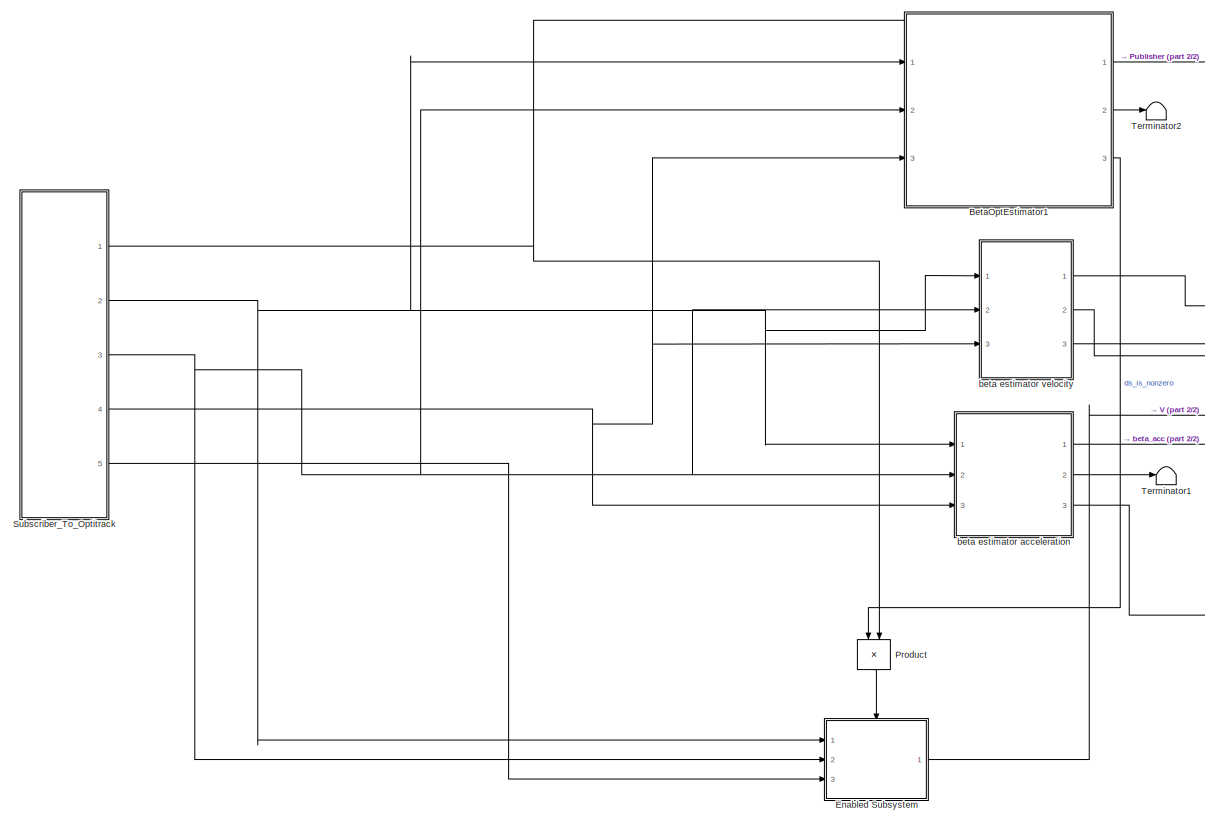
[diagram: root canvas - part 1/2, center side, full height]
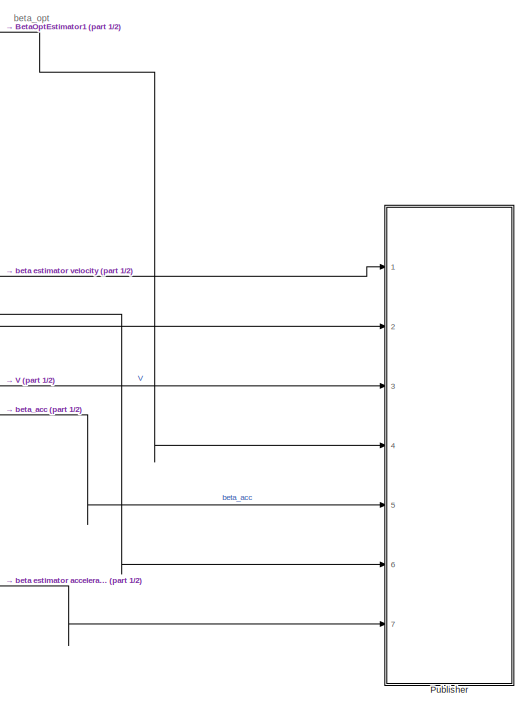
[diagram: root canvas - part 2/2, right side, full height]
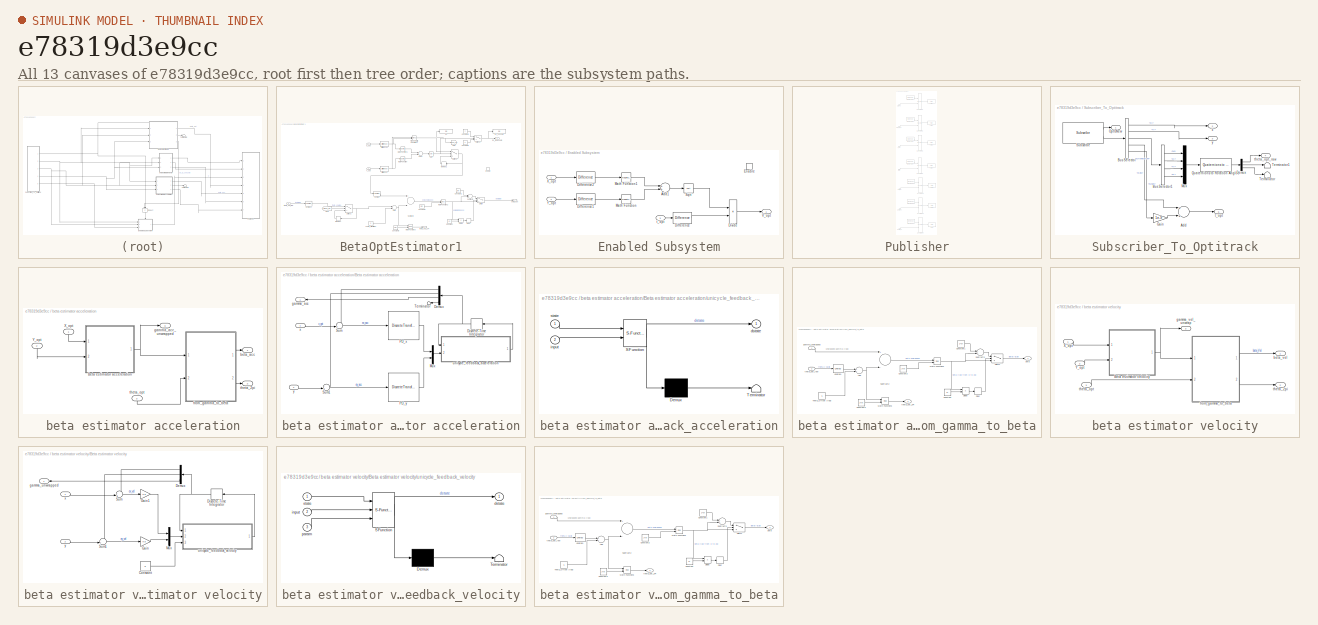
[diagram: thumbnail index - all 13 canvases of the model, root first then tree order]
MODEL slx_e78319d3e9cc
KIND model
CONFIG AbsTol = auto
CONFIG EnableMultiTasking = off
CONFIG FixedStep = 1e-3
CONFIG InitFcn = state_estimator_opt_driftingcar_multibeta_callback
CONFIG MaxStep = auto
CONFIG MinStep = auto
CONFIG RelTol = 1e-3
CONFIG SampleTimeConstraint = Unconstrained
CONFIG Solver = FixedStepAuto
CONFIG SolverName = FixedStepAuto
CONFIG StartTime = 0.0
CONFIG StopTime = inf
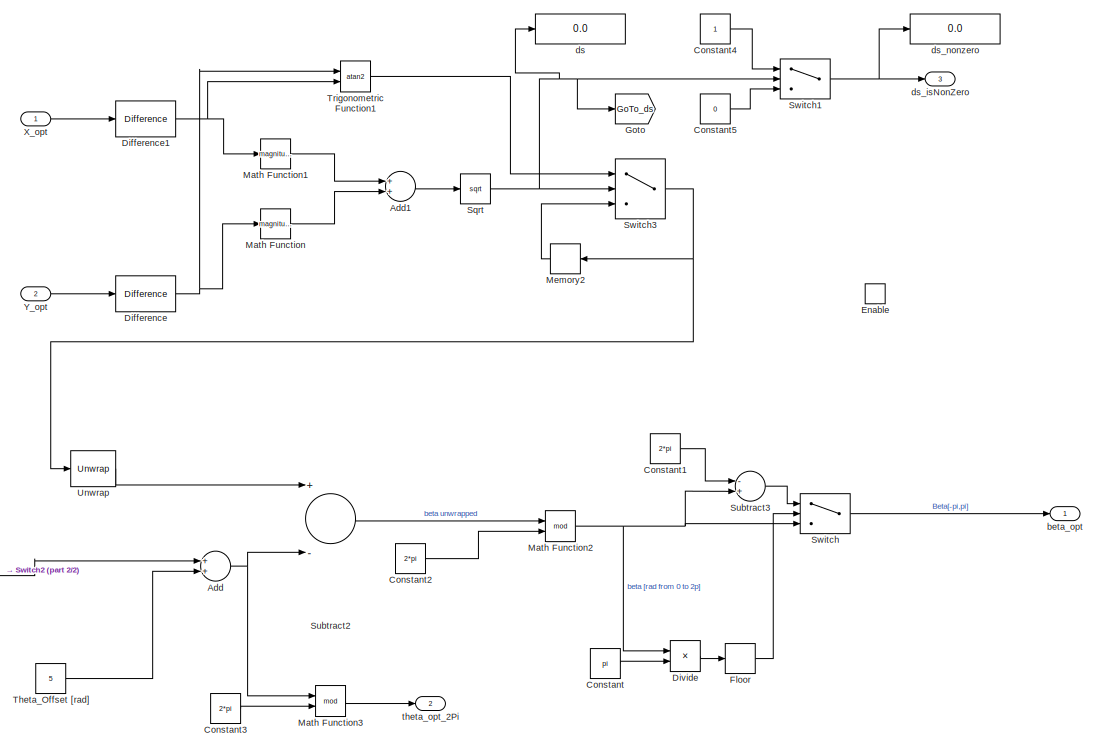
[diagram: BetaOptEstimator1 - part 1/2, right side, full height]
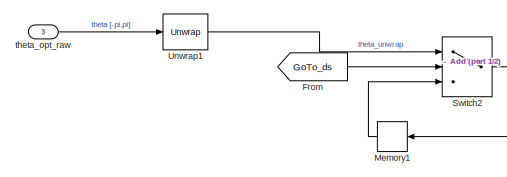
[diagram: BetaOptEstimator1 - part 2/2, bottom left region]
BLOCK [SubSystem] BetaOptEstimator1
  Ports = [3, 3, 1]
  RequestExecContextInheritance = off
  Variant = off
BLOCK [Sum] BetaOptEstimator1/Add
  InputSameDT = off
  OutDataTypeStr = Inherit: Inherit via internal rule
  Ports = [2, 1]
  SaturateOnIntegerOverflow = off
BLOCK [Sum] BetaOptEstimator1/Add1
  InputSameDT = off
  OutDataTypeStr = Inherit: Inherit via internal rule
  Ports = [2, 1]
  SaturateOnIntegerOverflow = off
BLOCK [Constant] BetaOptEstimator1/Constant
  Value = pi
BLOCK [Constant] BetaOptEstimator1/Constant1
  Value = 2*pi
BLOCK [Constant] BetaOptEstimator1/Constant2
  Value = 2*pi
BLOCK [Constant] BetaOptEstimator1/Constant3
  Value = 2*pi
BLOCK [Constant] BetaOptEstimator1/Constant4
BLOCK [Constant] BetaOptEstimator1/Constant5
  Value = 0
BLOCK [Reference] BetaOptEstimator1/Difference  REF=simulink/Discrete/Difference
  Ports = [1, 1]
  SourceBlock = simulink/Discrete/Difference
  SourceProductBaseCode = SL
  SourceProductName = Simulink
  SourceType = Difference
BLOCK [Reference] BetaOptEstimator1/Difference1  REF=simulink/Discrete/Difference
  Ports = [1, 1]
  SourceBlock = simulink/Discrete/Difference
  SourceProductBaseCode = SL
  SourceProductName = Simulink
  SourceType = Difference
BLOCK [Product] BetaOptEstimator1/Divide
  InputSameDT = off
  Inputs = */
  OutDataTypeStr = Inherit: Inherit via internal rule
  Ports = [2, 1]
  RndMeth = Floor
  SaturateOnIntegerOverflow = off
BLOCK [EnablePort] BetaOptEstimator1/Enable
  Ports = []
BLOCK [Rounding] BetaOptEstimator1/Floor
BLOCK [From] BetaOptEstimator1/From
  GotoTag = GoTo_ds
  TagVisibility = global
BLOCK [Goto] BetaOptEstimator1/Goto
  GotoTag = GoTo_ds
  TagVisibility = global
BLOCK [Math] BetaOptEstimator1/Math Function
  Operator = magnitude^2
  Ports = [1, 1]
BLOCK [Math] BetaOptEstimator1/Math Function1
  Operator = magnitude^2
  Ports = [1, 1]
BLOCK [Math] BetaOptEstimator1/Math Function2
  Operator = mod
  Ports = [2, 1]
BLOCK [Math] BetaOptEstimator1/Math Function3
  Operator = mod
  Ports = [2, 1]
BLOCK [Memory] BetaOptEstimator1/Memory1
BLOCK [Memory] BetaOptEstimator1/Memory2
BLOCK [Sqrt] BetaOptEstimator1/Sqrt
BLOCK [Sum] BetaOptEstimator1/Subtract2
  InputSameDT = off
  Inputs = +-
  OutDataTypeStr = Inherit: Inherit via internal rule
  Ports = [2, 1]
  SaturateOnIntegerOverflow = off
BLOCK [Sum] BetaOptEstimator1/Subtract3
  InputSameDT = off
  Inputs = -+
  OutDataTypeStr = Inherit: Inherit via internal rule
  Ports = [2, 1]
  SaturateOnIntegerOverflow = off
BLOCK [Switch] BetaOptEstimator1/Switch
  InputSameDT = off
  SaturateOnIntegerOverflow = off
  Threshold = 1
BLOCK [Switch] BetaOptEstimator1/Switch1
  Criteria = u2 > Threshold
  InputSameDT = off
  SaturateOnIntegerOverflow = off
  Threshold = ds_nonzero_threshold
BLOCK [Switch] BetaOptEstimator1/Switch2
  Criteria = u2 > Threshold
  InputSameDT = off
  SaturateOnIntegerOverflow = off
  Threshold = ds_nonzero_threshold
BLOCK [Switch] BetaOptEstimator1/Switch3
  Criteria = u2 > Threshold
  InputSameDT = off
  SaturateOnIntegerOverflow = off
  Threshold = ds_nonzero_threshold
BLOCK [Constant] BetaOptEstimator1/Theta_Offset [rad]
  Value = 5
BLOCK [Trigonometry] BetaOptEstimator1/Trigonometric Function1
  Operator = atan2
  Ports = [2, 1]
BLOCK [Reference] BetaOptEstimator1/Unwrap  REF=dspsigops/Unwrap
  Ports = [1, 1]
  SourceBlock = dspsigops/Unwrap
  SourceProductBaseCode = DS
  SourceProductName = DSP System Toolbox
  SourceType = Unwrap
  UserDataPersistent = on
BLOCK [Reference] BetaOptEstimator1/Unwrap1  REF=dspsigops/Unwrap
  Ports = [1, 1]
  SourceBlock = dspsigops/Unwrap
  SourceProductBaseCode = DS
  SourceProductName = DSP System Toolbox
  SourceType = Unwrap
  UserDataPersistent = on
BLOCK [Inport] BetaOptEstimator1/X_opt
  IconDisplay = Port number
BLOCK [Inport] BetaOptEstimator1/Y_opt
  IconDisplay = Port number
  Port = 2
BLOCK [Outport] BetaOptEstimator1/beta_opt
  IconDisplay = Port number
BLOCK [Display] BetaOptEstimator1/ds
  Decimation = 1
  Ports = [1]
BLOCK [Outport] BetaOptEstimator1/ds_isNonZero
  IconDisplay = Port number
  Port = 3
BLOCK [Display] BetaOptEstimator1/ds_nonzero
  Decimation = 1
  Ports = [1]
BLOCK [Outport] BetaOptEstimator1/theta_opt_2Pi
  IconDisplay = Port number
  Port = 2
BLOCK [Inport] BetaOptEstimator1/theta_opt_raw
  IconDisplay = Port number
  Port = 3
BLOCK [SubSystem] Enabled Subsystem
  Ports = [3, 1, 1]
  RequestExecContextInheritance = off
  TreatAsAtomicUnit = on
  Variant = off
BLOCK [Sum] Enabled Subsystem/Add1
  InputSameDT = off
  OutDataTypeStr = Inherit: Inherit via internal rule
  Ports = [2, 1]
  SaturateOnIntegerOverflow = off
BLOCK [Reference] Enabled Subsystem/Difference  REF=simulink/Discrete/Difference
  Ports = [1, 1]
  SourceBlock = simulink/Discrete/Difference
  SourceProductBaseCode = SL
  SourceProductName = Simulink
  SourceType = Difference
BLOCK [Reference] Enabled Subsystem/Difference1  REF=simulink/Discrete/Difference
  Ports = [1, 1]
  SourceBlock = simulink/Discrete/Difference
  SourceProductBaseCode = SL
  SourceProductName = Simulink
  SourceType = Difference
BLOCK [Reference] Enabled Subsystem/Difference2  REF=simulink/Discrete/Difference
  Ports = [1, 1]
  SourceBlock = simulink/Discrete/Difference
  SourceProductBaseCode = SL
  SourceProductName = Simulink
  SourceType = Difference
BLOCK [Product] Enabled Subsystem/Divide
  InputSameDT = off
  Inputs = */
  OutDataTypeStr = Inherit: Inherit via internal rule
  Ports = [2, 1]
  RndMeth = Floor
  SaturateOnIntegerOverflow = off
BLOCK [EnablePort] Enabled Subsystem/Enable
  Ports = []
BLOCK [Math] Enabled Subsystem/Math Function
  Operator = magnitude^2
  Ports = [1, 1]
BLOCK [Math] Enabled Subsystem/Math Function1
  Operator = magnitude^2
  Ports = [1, 1]
BLOCK [Sqrt] Enabled Subsystem/Sqrt
BLOCK [Outport] Enabled Subsystem/V_opt
  IconDisplay = Port number
BLOCK [Inport] Enabled Subsystem/X_opt
  IconDisplay = Port number
BLOCK [Inport] Enabled Subsystem/Y_opt
  IconDisplay = Port number
  Port = 2
BLOCK [Inport] Enabled Subsystem/t_opt
  IconDisplay = Port number
  Port = 3
BLOCK [Product] Product
  InputSameDT = off
  OutDataTypeStr = Inherit: Inherit via internal rule
  Ports = [2, 1]
  RndMeth = Floor
  SaturateOnIntegerOverflow = off
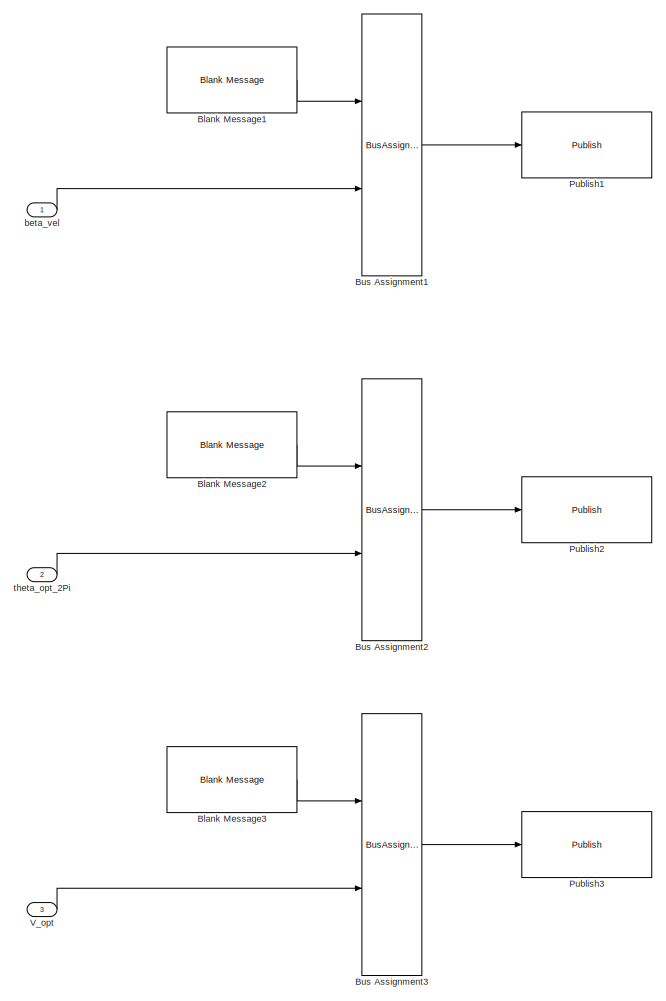
[diagram: Publisher - part 1/2, full width, top band]
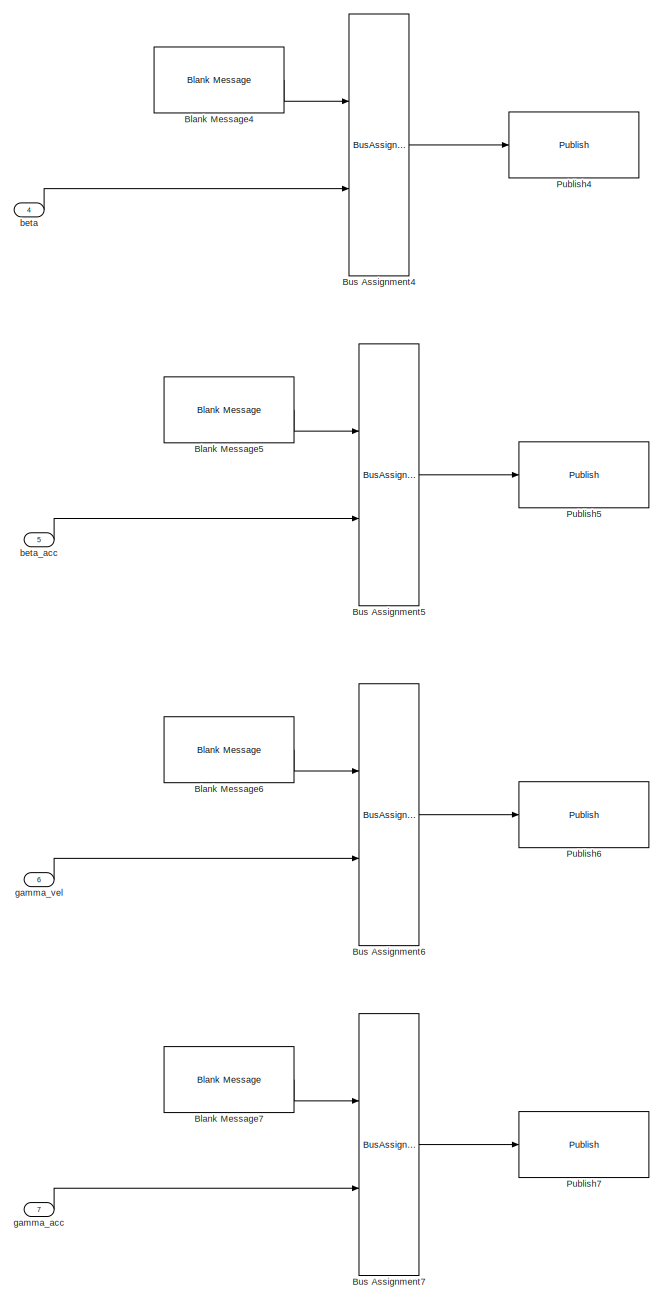
[diagram: Publisher - part 2/2, full width, bottom band]
BLOCK [SubSystem] Publisher
  Ports = [7]
  RequestExecContextInheritance = off
  Variant = off
BLOCK [Reference] Publisher/Blank Message1  REF=robotlib/Blank Message
  Ports = [0, 1]
  SourceBlock = robotlib/Blank Message
  SourceLibraryInfo = This block requires Robotics System Toolbox
  SourceProductBaseCode = RO
  SourceProductName = Robotics System Toolbox
  SourceType = ROS Blank Message
BLOCK [Reference] Publisher/Blank Message2  REF=robotlib/Blank Message
  Ports = [0, 1]
  SourceBlock = robotlib/Blank Message
  SourceLibraryInfo = This block requires Robotics System Toolbox
  SourceProductBaseCode = RO
  SourceProductName = Robotics System Toolbox
  SourceType = ROS Blank Message
BLOCK [Reference] Publisher/Blank Message3  REF=robotlib/Blank Message
  Ports = [0, 1]
  SourceBlock = robotlib/Blank Message
  SourceLibraryInfo = This block requires Robotics System Toolbox
  SourceProductBaseCode = RO
  SourceProductName = Robotics System Toolbox
  SourceType = ROS Blank Message
BLOCK [Reference] Publisher/Blank Message4  REF=robotlib/Blank Message
  Ports = [0, 1]
  SourceBlock = robotlib/Blank Message
  SourceLibraryInfo = This block requires Robotics System Toolbox
  SourceProductBaseCode = RO
  SourceProductName = Robotics System Toolbox
  SourceType = ROS Blank Message
BLOCK [Reference] Publisher/Blank Message5  REF=robotlib/Blank Message
  Ports = [0, 1]
  SourceBlock = robotlib/Blank Message
  SourceLibraryInfo = This block requires Robotics System Toolbox
  SourceProductBaseCode = RO
  SourceProductName = Robotics System Toolbox
  SourceType = ROS Blank Message
BLOCK [Reference] Publisher/Blank Message6  REF=robotlib/Blank Message
  Ports = [0, 1]
  SourceBlock = robotlib/Blank Message
  SourceLibraryInfo = This block requires Robotics System Toolbox
  SourceProductBaseCode = RO
  SourceProductName = Robotics System Toolbox
  SourceType = ROS Blank Message
BLOCK [Reference] Publisher/Blank Message7  REF=robotlib/Blank Message
  Ports = [0, 1]
  SourceBlock = robotlib/Blank Message
  SourceLibraryInfo = This block requires Robotics System Toolbox
  SourceProductBaseCode = RO
  SourceProductName = Robotics System Toolbox
  SourceType = ROS Blank Message
BLOCK [BusAssignment] Publisher/Bus Assignment1
  AssignedSignals = Data
  Ports = [2, 1]
BLOCK [BusAssignment] Publisher/Bus Assignment2
  AssignedSignals = Data
  Ports = [2, 1]
BLOCK [BusAssignment] Publisher/Bus Assignment3
  AssignedSignals = Data
  Ports = [2, 1]
BLOCK [BusAssignment] Publisher/Bus Assignment4
  AssignedSignals = Data
  Ports = [2, 1]
BLOCK [BusAssignment] Publisher/Bus Assignment5
  AssignedSignals = Data
  Ports = [2, 1]
BLOCK [BusAssignment] Publisher/Bus Assignment6
  AssignedSignals = Data
  Ports = [2, 1]
BLOCK [BusAssignment] Publisher/Bus Assignment7
  AssignedSignals = Data
  Ports = [2, 1]
BLOCK [Reference] Publisher/Publish1  REF=robotlib/Publish
  Ports = [1]
  SourceBlock = robotlib/Publish
  SourceLibraryInfo = This block requires Robotics System Toolbox
  SourceProductBaseCode = RO
  SourceProductName = Robotics System Toolbox
  SourceType = ROS Publish
BLOCK [Reference] Publisher/Publish2  REF=robotlib/Publish
  Ports = [1]
  SourceBlock = robotlib/Publish
  SourceLibraryInfo = This block requires Robotics System Toolbox
  SourceProductBaseCode = RO
  SourceProductName = Robotics System Toolbox
  SourceType = ROS Publish
BLOCK [Reference] Publisher/Publish3  REF=robotlib/Publish
  Ports = [1]
  SourceBlock = robotlib/Publish
  SourceLibraryInfo = This block requires Robotics System Toolbox
  SourceProductBaseCode = RO
  SourceProductName = Robotics System Toolbox
  SourceType = ROS Publish
BLOCK [Reference] Publisher/Publish4  REF=robotlib/Publish
  Ports = [1]
  SourceBlock = robotlib/Publish
  SourceLibraryInfo = This block requires Robotics System Toolbox
  SourceProductBaseCode = RO
  SourceProductName = Robotics System Toolbox
  SourceType = ROS Publish
BLOCK [Reference] Publisher/Publish5  REF=robotlib/Publish
  Ports = [1]
  SourceBlock = robotlib/Publish
  SourceLibraryInfo = This block requires Robotics System Toolbox
  SourceProductBaseCode = RO
  SourceProductName = Robotics System Toolbox
  SourceType = ROS Publish
BLOCK [Reference] Publisher/Publish6  REF=robotlib/Publish
  Ports = [1]
  SourceBlock = robotlib/Publish
  SourceLibraryInfo = This block requires Robotics System Toolbox
  SourceProductBaseCode = RO
  SourceProductName = Robotics System Toolbox
  SourceType = ROS Publish
BLOCK [Reference] Publisher/Publish7  REF=robotlib/Publish
  Ports = [1]
  SourceBlock = robotlib/Publish
  SourceLibraryInfo = This block requires Robotics System Toolbox
  SourceProductBaseCode = RO
  SourceProductName = Robotics System Toolbox
  SourceType = ROS Publish
BLOCK [Inport] Publisher/V_opt
  IconDisplay = Port number
  Port = 3
BLOCK [Inport] Publisher/beta
  IconDisplay = Port number
  Port = 4
BLOCK [Inport] Publisher/beta_acc
  IconDisplay = Port number
  Port = 5
BLOCK [Inport] Publisher/beta_vel
  IconDisplay = Port number
BLOCK [Inport] Publisher/gamma_acc
  IconDisplay = Port number
  Port = 7
BLOCK [Inport] Publisher/gamma_vel
  IconDisplay = Port number
  Port = 6
BLOCK [Inport] Publisher/theta_opt_2Pi
  IconDisplay = Port number
  Port = 2
BLOCK [SubSystem] Subscriber_To_Optitrack
  Ports = [0, 5]
  RequestExecContextInheritance = off
  Variant = off
BLOCK [Sum] Subscriber_To_Optitrack/Add
  InputSameDT = off
  OutDataTypeStr = Inherit: Inherit via internal rule
  Ports = [2, 1]
  SaturateOnIntegerOverflow = off
BLOCK [BusSelector] Subscriber_To_Optitrack/Bus Selector
  OutputAsBus = off
  OutputSignals = Pose.Position.X,Pose.Position.Y,Pose.Orientation,Header.Stamp.Sec,Header.Stamp.Nsec
  Ports = [1, 5]
BLOCK [BusSelector] Subscriber_To_Optitrack/Bus Selector1
  OutputAsBus = off
  OutputSignals = W,X,Y,Z
  Ports = [1, 4]
BLOCK [Demux] Subscriber_To_Optitrack/Demux
  DisplayOption = bar
  Outputs = 3
  Ports = [1, 3]
BLOCK [Gain] Subscriber_To_Optitrack/Gain
  Gain = 1e-9
  OutDataTypeStr = Inherit: Inherit via internal rule
  ParamDataTypeStr = Inherit: Inherit via internal rule
  SaturateOnIntegerOverflow = off
BLOCK [Mux] Subscriber_To_Optitrack/Mux
  DisplayOption = bar
  Ports = [4, 1]
BLOCK [Outport] Subscriber_To_Optitrack/OptIsNew
  IconDisplay = Port number
BLOCK [Reference] Subscriber_To_Optitrack/Quaternions to Rotation Angles  REF=sharedtransform/Quaternions to Rotation Angles
  AttributesFormatString = Rotation Order: %<rotationOrder>
  Ports = [1, 1]
  SourceBlock = sharedtransform/Quaternions to Rotation Angles
  SourceType = Quat2Ang
BLOCK [Reference] Subscriber_To_Optitrack/Subscribe  REF=robotlib/Subscribe
  Ports = [0, 2]
  SourceBlock = robotlib/Subscribe
  SourceLibraryInfo = This block requires Robotics System Toolbox
  SourceProductBaseCode = RO
  SourceProductName = Robotics System Toolbox
  SourceType = ROS Subscribe
BLOCK [Terminator] Subscriber_To_Optitrack/Terminator
BLOCK [Terminator] Subscriber_To_Optitrack/Terminator1
BLOCK [Outport] Subscriber_To_Optitrack/t_opt
  IconDisplay = Port number
  Port = 5
BLOCK [Outport] Subscriber_To_Optitrack/theta_opt_raw
  IconDisplay = Port number
  Port = 4
BLOCK [Outport] Subscriber_To_Optitrack/x
  IconDisplay = Port number
  Port = 2
BLOCK [Outport] Subscriber_To_Optitrack/y
  IconDisplay = Port number
  Port = 3
BLOCK [Terminator] Terminator1
BLOCK [Terminator] Terminator2
BLOCK [SubSystem] beta estimator acceleration
  Ports = [3, 3]
  RequestExecContextInheritance = off
  Variant = off
BLOCK [SubSystem] beta estimator acceleration/Beta estimator acceleration
  Ports = [2, 1]
  RequestExecContextInheritance = off
  Variant = off
BLOCK [Demux] beta estimator acceleration/Beta estimator acceleration/Demux
  DisplayOption = bar
  Ports = [1, 4]
BLOCK [DiscreteIntegrator] beta estimator acceleration/Beta estimator acceleration/Discrete-Time Integrator
  ICPrevOutput = DiscIntNeverNeededParam
  ICPrevScaledInput = DiscIntNeverNeededParam
  InitialCondition = acc_integrator_initial_condition
  InitialConditionSetting = State (most efficient)
  Ports = [1, 1]
  SampleTime = 1e-3
BLOCK [Mux] beta estimator acceleration/Beta estimator acceleration/Mux
  DisplayOption = bar
  Inputs = 2
  Ports = [2, 1]
BLOCK [DiscreteTransferFcn] beta estimator acceleration/Beta estimator acceleration/PD_x
  Denominator = Den_PDa
  InputPortMap = u0
  Numerator = Num_PDa
  Ports = [1, 1]
  a0EqualsOne = on
BLOCK [DiscreteTransferFcn] beta estimator acceleration/Beta estimator acceleration/PD_y
  Denominator = Den_PDa
  InputPortMap = u0
  Numerator = Num_PDa
  Ports = [1, 1]
  a0EqualsOne = on
BLOCK [Sum] beta estimator acceleration/Beta estimator acceleration/Sum
  IconShape = round
  InputSameDT = off
  Inputs = -+|
  OutDataTypeStr = Inherit: Inherit via internal rule
  Ports = [2, 1]
  SaturateOnIntegerOverflow = off
BLOCK [Sum] beta estimator acceleration/Beta estimator acceleration/Sum1
  IconShape = round
  InputSameDT = off
  Inputs = -+|
  OutDataTypeStr = Inherit: Inherit via internal rule
  Ports = [2, 1]
  SaturateOnIntegerOverflow = off
BLOCK [Terminator] beta estimator acceleration/Beta estimator acceleration/Terminator
BLOCK [Outport] beta estimator acceleration/Beta estimator acceleration/gamma_acc
  IconDisplay = Port number
BLOCK [SubSystem] beta estimator acceleration/Beta estimator acceleration/unicycle_feedback_acceleration
  ErrorFcn = Stateflow.Translate.translate
  PermitHierarchicalResolution = ExplicitOnly
  Ports = [2, 1]
  RequestExecContextInheritance = off
  SFBlockType = MATLAB Function
  TreatAsAtomicUnit = on
  Variant = off
BLOCK [Demux] beta estimator acceleration/Beta estimator acceleration/unicycle_feedback_acceleration/ Demux 
  Outputs = 1
  Ports = [1, 1]
BLOCK [S-Function] beta estimator acceleration/Beta estimator acceleration/unicycle_feedback_acceleration/ SFunction 
  EnableBusSupport = on
  FunctionName = sf_sfun
  PortCounts = [2 2]
  Ports = [2, 2]
  SFcnIsStateOwnerBlock = off
  SFunctionDeploymentMode = off
  Tag = Stateflow S-Function state_estimator_opt_driftingcar_multibeta 2
BLOCK [Terminator] beta estimator acceleration/Beta estimator acceleration/unicycle_feedback_acceleration/ Terminator 
BLOCK [Outport] beta estimator acceleration/Beta estimator acceleration/unicycle_feedback_acceleration/dstate
  IconDisplay = Port number
BLOCK [Inport] beta estimator acceleration/Beta estimator acceleration/unicycle_feedback_acceleration/input
  IconDisplay = Port number
  Port = 2
BLOCK [Inport] beta estimator acceleration/Beta estimator acceleration/unicycle_feedback_acceleration/state
  IconDisplay = Port number
BLOCK [Inport] beta estimator acceleration/Beta estimator acceleration/x
  IconDisplay = Port number
BLOCK [Inport] beta estimator acceleration/Beta estimator acceleration/y
  IconDisplay = Port number
  Port = 2
BLOCK [Inport] beta estimator acceleration/X_opt
  IconDisplay = Port number
BLOCK [Inport] beta estimator acceleration/Y_opt
  IconDisplay = Port number
  Port = 2
BLOCK [Outport] beta estimator acceleration/beta_acc
  IconDisplay = Port number
BLOCK [SubSystem] beta estimator acceleration/from_gamma_to_beta
  Ports = [2, 2]
  RequestExecContextInheritance = off
  Variant = off
BLOCK [Sum] beta estimator acceleration/from_gamma_to_beta/Add
  InputSameDT = off
  OutDataTypeStr = Inherit: Inherit via internal rule
  Ports = [2, 1]
  SaturateOnIntegerOverflow = off
BLOCK [Constant] beta estimator acceleration/from_gamma_to_beta/Constant
  Value = pi
BLOCK [Constant] beta estimator acceleration/from_gamma_to_beta/Constant1
  Value = 2*pi
BLOCK [Constant] beta estimator acceleration/from_gamma_to_beta/Constant2
  Value = 2*pi
BLOCK [Constant] beta estimator acceleration/from_gamma_to_beta/Constant3
  Value = 2*pi
BLOCK [Product] beta estimator acceleration/from_gamma_to_beta/Divide
  InputSameDT = off
  Inputs = */
  OutDataTypeStr = Inherit: Inherit via internal rule
  Ports = [2, 1]
  RndMeth = Floor
  SaturateOnIntegerOverflow = off
BLOCK [Rounding] beta estimator acceleration/from_gamma_to_beta/Floor
BLOCK [Math] beta estimator acceleration/from_gamma_to_beta/Math Function2
  Operator = mod
  Ports = [2, 1]
BLOCK [Math] beta estimator acceleration/from_gamma_to_beta/Math Function3
  Operator = mod
  Ports = [2, 1]
BLOCK [Sum] beta estimator acceleration/from_gamma_to_beta/Subtract2
  InputSameDT = off
  Inputs = +-
  OutDataTypeStr = Inherit: Inherit via internal rule
  Ports = [2, 1]
  SaturateOnIntegerOverflow = off
BLOCK [Sum] beta estimator acceleration/from_gamma_to_beta/Subtract3
  InputSameDT = off
  Inputs = -+
  OutDataTypeStr = Inherit: Inherit via internal rule
  Ports = [2, 1]
  SaturateOnIntegerOverflow = off
BLOCK [Switch] beta estimator acceleration/from_gamma_to_beta/Switch
  InputSameDT = off
  SaturateOnIntegerOverflow = off
  Threshold = 1
BLOCK [Constant] beta estimator acceleration/from_gamma_to_beta/Theta_Offset [rad]
  Value = 5
BLOCK [Reference] beta estimator acceleration/from_gamma_to_beta/Unwrap1  REF=dspsigops/Unwrap
  Ports = [1, 1]
  SourceBlock = dspsigops/Unwrap
  SourceProductBaseCode = DS
  SourceProductName = DSP System Toolbox
  SourceType = Unwrap
  UserDataPersistent = on
BLOCK [Outport] beta estimator acceleration/from_gamma_to_beta/beta
  IconDisplay = Port number
BLOCK [Inport] beta estimator acceleration/from_gamma_to_beta/gamma_unwrapped
  IconDisplay = Port number
BLOCK [Outport] beta estimator acceleration/from_gamma_to_beta/theta_opt_2Pi
  IconDisplay = Port number
  Port = 2
BLOCK [Inport] beta estimator acceleration/from_gamma_to_beta/theta_opt_raw
  IconDisplay = Port number
  Port = 2
BLOCK [Outport] beta estimator acceleration/gamma_acc_unwrapped
  IconDisplay = Port number
  Port = 3
BLOCK [Outport] beta estimator acceleration/theta_2pi
  IconDisplay = Port number
  Port = 2
BLOCK [Inport] beta estimator acceleration/theta_opt
  IconDisplay = Port number
  Port = 3
BLOCK [SubSystem] beta estimator velocity
  Ports = [3, 3]
  RequestExecContextInheritance = off
  Variant = off
BLOCK [SubSystem] beta estimator velocity/Beta estimator velocity
  Ports = [2, 1]
  RequestExecContextInheritance = off
  Variant = off
BLOCK [Constant] beta estimator velocity/Beta estimator velocity/Constant
  Value = p
BLOCK [Demux] beta estimator velocity/Beta estimator velocity/Demux
  DisplayOption = bar
  Outputs = 3
  Ports = [1, 3]
BLOCK [DiscreteIntegrator] beta estimator velocity/Beta estimator velocity/Discrete-Time Integrator
  ICPrevOutput = DiscIntNeverNeededParam
  ICPrevScaledInput = DiscIntNeverNeededParam
  InitialConditionSetting = State (most efficient)
  Ports = [1, 1]
  SampleTime = 0.001
BLOCK [Gain] beta estimator velocity/Beta estimator velocity/Gain
  Gain = Kp
  OutDataTypeStr = Inherit: Inherit via internal rule
  ParamDataTypeStr = Inherit: Inherit via internal rule
  SaturateOnIntegerOverflow = off
BLOCK [Gain] beta estimator velocity/Beta estimator velocity/Gain1
  Gain = Kp
  OutDataTypeStr = Inherit: Inherit via internal rule
  ParamDataTypeStr = Inherit: Inherit via internal rule
  SaturateOnIntegerOverflow = off
BLOCK [Mux] beta estimator velocity/Beta estimator velocity/Mux
  DisplayOption = bar
  Inputs = 2
  Ports = [2, 1]
BLOCK [Sum] beta estimator velocity/Beta estimator velocity/Sum
  IconShape = round
  InputSameDT = off
  Inputs = -+|
  OutDataTypeStr = Inherit: Inherit via internal rule
  Ports = [2, 1]
  SaturateOnIntegerOverflow = off
BLOCK [Sum] beta estimator velocity/Beta estimator velocity/Sum1
  IconShape = round
  InputSameDT = off
  Inputs = -+|
  OutDataTypeStr = Inherit: Inherit via internal rule
  Ports = [2, 1]
  SaturateOnIntegerOverflow = off
BLOCK [Outport] beta estimator velocity/Beta estimator velocity/gamma_unwrapped
  IconDisplay = Port number
BLOCK [SubSystem] beta estimator velocity/Beta estimator velocity/unicycle_feedback_velocity
  ErrorFcn = Stateflow.Translate.translate
  PermitHierarchicalResolution = ExplicitOnly
  Ports = [3, 1]
  RequestExecContextInheritance = off
  SFBlockType = MATLAB Function
  TreatAsAtomicUnit = on
  Variant = off
BLOCK [Demux] beta estimator velocity/Beta estimator velocity/unicycle_feedback_velocity/ Demux 
  Outputs = 1
  Ports = [1, 1]
BLOCK [S-Function] beta estimator velocity/Beta estimator velocity/unicycle_feedback_velocity/ SFunction 
  EnableBusSupport = on
  FunctionName = sf_sfun
  PortCounts = [3 2]
  Ports = [3, 2]
  SFcnIsStateOwnerBlock = off
  SFunctionDeploymentMode = off
  Tag = Stateflow S-Function state_estimator_opt_driftingcar_multibeta 1
BLOCK [Terminator] beta estimator velocity/Beta estimator velocity/unicycle_feedback_velocity/ Terminator 
BLOCK [Outport] beta estimator velocity/Beta estimator velocity/unicycle_feedback_velocity/dstate
  IconDisplay = Port number
BLOCK [Inport] beta estimator velocity/Beta estimator velocity/unicycle_feedback_velocity/input
  IconDisplay = Port number
  Port = 2
BLOCK [Inport] beta estimator velocity/Beta estimator velocity/unicycle_feedback_velocity/param
  IconDisplay = Port number
  Port = 3
BLOCK [Inport] beta estimator velocity/Beta estimator velocity/unicycle_feedback_velocity/state
  IconDisplay = Port number
BLOCK [Inport] beta estimator velocity/Beta estimator velocity/x
  IconDisplay = Port number
BLOCK [Inport] beta estimator velocity/Beta estimator velocity/y
  IconDisplay = Port number
  Port = 2
BLOCK [Inport] beta estimator velocity/X_opt
  IconDisplay = Port number
BLOCK [Inport] beta estimator velocity/Y_opt
  IconDisplay = Port number
  Port = 2
BLOCK [Outport] beta estimator velocity/beta_vel
  IconDisplay = Port number
BLOCK [SubSystem] beta estimator velocity/from_gamma_to_beta
  Ports = [2, 2]
  RequestExecContextInheritance = off
  Variant = off
BLOCK [Sum] beta estimator velocity/from_gamma_to_beta/Add
  InputSameDT = off
  OutDataTypeStr = Inherit: Inherit via internal rule
  Ports = [2, 1]
  SaturateOnIntegerOverflow = off
BLOCK [Constant] beta estimator velocity/from_gamma_to_beta/Constant
  Value = pi
BLOCK [Constant] beta estimator velocity/from_gamma_to_beta/Constant1
  Value = 2*pi
BLOCK [Constant] beta estimator velocity/from_gamma_to_beta/Constant2
  Value = 2*pi
BLOCK [Constant] beta estimator velocity/from_gamma_to_beta/Constant3
  Value = 2*pi
BLOCK [Product] beta estimator velocity/from_gamma_to_beta/Divide
  InputSameDT = off
  Inputs = */
  OutDataTypeStr = Inherit: Inherit via internal rule
  Ports = [2, 1]
  RndMeth = Floor
  SaturateOnIntegerOverflow = off
BLOCK [Rounding] beta estimator velocity/from_gamma_to_beta/Floor
BLOCK [Math] beta estimator velocity/from_gamma_to_beta/Math Function2
  Operator = mod
  Ports = [2, 1]
BLOCK [Math] beta estimator velocity/from_gamma_to_beta/Math Function3
  Operator = mod
  Ports = [2, 1]
BLOCK [Sum] beta estimator velocity/from_gamma_to_beta/Subtract2
  InputSameDT = off
  Inputs = +-
  OutDataTypeStr = Inherit: Inherit via internal rule
  Ports = [2, 1]
  SaturateOnIntegerOverflow = off
BLOCK [Sum] beta estimator velocity/from_gamma_to_beta/Subtract3
  InputSameDT = off
  Inputs = -+
  OutDataTypeStr = Inherit: Inherit via internal rule
  Ports = [2, 1]
  SaturateOnIntegerOverflow = off
BLOCK [Switch] beta estimator velocity/from_gamma_to_beta/Switch
  InputSameDT = off
  SaturateOnIntegerOverflow = off
  Threshold = 1
BLOCK [Constant] beta estimator velocity/from_gamma_to_beta/Theta_Offset [rad]
  Value = 5
BLOCK [Reference] beta estimator velocity/from_gamma_to_beta/Unwrap1  REF=dspsigops/Unwrap
  Ports = [1, 1]
  SourceBlock = dspsigops/Unwrap
  SourceProductBaseCode = DS
  SourceProductName = DSP System Toolbox
  SourceType = Unwrap
  UserDataPersistent = on
BLOCK [Outport] beta estimator velocity/from_gamma_to_beta/beta
  IconDisplay = Port number
BLOCK [Inport] beta estimator velocity/from_gamma_to_beta/gamma_unwrapped
  IconDisplay = Port number
BLOCK [Outport] beta estimator velocity/from_gamma_to_beta/theta_opt_2Pi
  IconDisplay = Port number
  Port = 2
BLOCK [Inport] beta estimator velocity/from_gamma_to_beta/theta_opt_raw
  IconDisplay = Port number
  Port = 2
BLOCK [Outport] beta estimator velocity/gamma_vel_unwrap
  IconDisplay = Port number
  Port = 3
BLOCK [Outport] beta estimator velocity/theta_2pi
  IconDisplay = Port number
  Port = 2
BLOCK [Inport] beta estimator velocity/theta_opt
  IconDisplay = Port number
  Port = 3
ANNOTATION (root): beta_opt
ANNOTATION beta estimator acceleration/from_gamma_to_beta: unwrapped gamma [rad]
ANNOTATION beta estimator velocity/from_gamma_to_beta: unwrapped gamma [rad]
LINE BetaOptEstimator1/Add1:1 -> BetaOptEstimator1/Sqrt:1
NET BetaOptEstimator1/Add:1 -> BetaOptEstimator1/Math Function3:1, BetaOptEstimator1/Subtract2:2
LINE BetaOptEstimator1/Constant1:1 -> BetaOptEstimator1/Subtract3:1
LINE BetaOptEstimator1/Constant2:1 -> BetaOptEstimator1/Math Function2:2
LINE BetaOptEstimator1/Constant3:1 -> BetaOptEstimator1/Math Function3:2
LINE BetaOptEstimator1/Constant4:1 -> BetaOptEstimator1/Switch1:1
LINE BetaOptEstimator1/Constant5:1 -> BetaOptEstimator1/Switch1:3
LINE BetaOptEstimator1/Constant:1 -> BetaOptEstimator1/Divide:2
NET BetaOptEstimator1/Difference1:1 -> BetaOptEstimator1/Math Function1:1, BetaOptEstimator1/Trigonometric Function1:2
NET BetaOptEstimator1/Difference:1 -> BetaOptEstimator1/Math Function:1, BetaOptEstimator1/Trigonometric Function1:1
LINE BetaOptEstimator1/Divide:1 -> BetaOptEstimator1/Floor:1
LINE BetaOptEstimator1/Floor:1 -> BetaOptEstimator1/Switch:2
LINE BetaOptEstimator1/From:1 -> BetaOptEstimator1/Switch2:2
LINE BetaOptEstimator1/Math Function1:1 -> BetaOptEstimator1/Add1:1
NET BetaOptEstimator1/Math Function2:1 -> BetaOptEstimator1/Divide:1, BetaOptEstimator1/Subtract3:2, BetaOptEstimator1/Switch:3
LINE BetaOptEstimator1/Math Function3:1 -> BetaOptEstimator1/theta_opt_2Pi:1
LINE BetaOptEstimator1/Math Function:1 -> BetaOptEstimator1/Add1:2
LINE BetaOptEstimator1/Memory1:1 -> BetaOptEstimator1/Switch2:3
LINE BetaOptEstimator1/Memory2:1 -> BetaOptEstimator1/Switch3:3
NET BetaOptEstimator1/Sqrt:1 -> BetaOptEstimator1/Goto:1, BetaOptEstimator1/Switch1:2, BetaOptEstimator1/Switch3:2, BetaOptEstimator1/ds:1
LINE BetaOptEstimator1/Subtract2:1 -> BetaOptEstimator1/Math Function2:1
LINE BetaOptEstimator1/Subtract3:1 -> BetaOptEstimator1/Switch:1
NET BetaOptEstimator1/Switch1:1 -> BetaOptEstimator1/ds_isNonZero:1, BetaOptEstimator1/ds_nonzero:1
NET BetaOptEstimator1/Switch2:1 -> BetaOptEstimator1/Add:1, BetaOptEstimator1/Memory1:1
NET BetaOptEstimator1/Switch3:1 -> BetaOptEstimator1/Memory2:1, BetaOptEstimator1/Unwrap:1
LINE BetaOptEstimator1/Switch:1 -> BetaOptEstimator1/beta_opt:1
LINE BetaOptEstimator1/Theta_Offset [rad]:1 -> BetaOptEstimator1/Add:2
LINE BetaOptEstimator1/Trigonometric Function1:1 -> BetaOptEstimator1/Switch3:1
LINE BetaOptEstimator1/Unwrap1:1 -> BetaOptEstimator1/Switch2:1
LINE BetaOptEstimator1/Unwrap:1 -> BetaOptEstimator1/Subtract2:1
LINE BetaOptEstimator1/X_opt:1 -> BetaOptEstimator1/Difference1:1
LINE BetaOptEstimator1/Y_opt:1 -> BetaOptEstimator1/Difference:1
LINE BetaOptEstimator1/theta_opt_raw:1 -> BetaOptEstimator1/Unwrap1:1
LINE BetaOptEstimator1:1 -> Publisher:4
LINE BetaOptEstimator1:2 -> Terminator2:1
LINE BetaOptEstimator1:3 -> Product:1
LINE Enabled Subsystem/Add1:1 -> Enabled Subsystem/Sqrt:1
LINE Enabled Subsystem/Difference1:1 -> Enabled Subsystem/Math Function:1
LINE Enabled Subsystem/Difference2:1 -> Enabled Subsystem/Math Function1:1
LINE Enabled Subsystem/Difference:1 -> Enabled Subsystem/Divide:2
LINE Enabled Subsystem/Divide:1 -> Enabled Subsystem/V_opt:1
LINE Enabled Subsystem/Math Function1:1 -> Enabled Subsystem/Add1:1
LINE Enabled Subsystem/Math Function:1 -> Enabled Subsystem/Add1:2
LINE Enabled Subsystem/Sqrt:1 -> Enabled Subsystem/Divide:1
LINE Enabled Subsystem/X_opt:1 -> Enabled Subsystem/Difference2:1
LINE Enabled Subsystem/Y_opt:1 -> Enabled Subsystem/Difference1:1
LINE Enabled Subsystem/t_opt:1 -> Enabled Subsystem/Difference:1
LINE Enabled Subsystem:1 -> Publisher:3
LINE Product:1 -> Enabled Subsystem:enable
LINE Publisher/Blank Message1:1 -> Publisher/Bus Assignment1:1
LINE Publisher/Blank Message2:1 -> Publisher/Bus Assignment2:1
LINE Publisher/Blank Message3:1 -> Publisher/Bus Assignment3:1
LINE Publisher/Blank Message4:1 -> Publisher/Bus Assignment4:1
LINE Publisher/Blank Message5:1 -> Publisher/Bus Assignment5:1
LINE Publisher/Blank Message6:1 -> Publisher/Bus Assignment6:1
LINE Publisher/Blank Message7:1 -> Publisher/Bus Assignment7:1
LINE Publisher/Bus Assignment1:1 -> Publisher/Publish1:1
LINE Publisher/Bus Assignment2:1 -> Publisher/Publish2:1
LINE Publisher/Bus Assignment3:1 -> Publisher/Publish3:1
LINE Publisher/Bus Assignment4:1 -> Publisher/Publish4:1
LINE Publisher/Bus Assignment5:1 -> Publisher/Publish5:1
LINE Publisher/Bus Assignment6:1 -> Publisher/Publish6:1
LINE Publisher/Bus Assignment7:1 -> Publisher/Publish7:1
LINE Publisher/V_opt:1 -> Publisher/Bus Assignment3:2
LINE Publisher/beta:1 -> Publisher/Bus Assignment4:2
LINE Publisher/beta_acc:1 -> Publisher/Bus Assignment5:2
LINE Publisher/beta_vel:1 -> Publisher/Bus Assignment1:2
LINE Publisher/gamma_acc:1 -> Publisher/Bus Assignment7:2
LINE Publisher/gamma_vel:1 -> Publisher/Bus Assignment6:2
LINE Publisher/theta_opt_2Pi:1 -> Publisher/Bus Assignment2:2
LINE Subscriber_To_Optitrack/Add:1 -> Subscriber_To_Optitrack/t_opt:1
LINE Subscriber_To_Optitrack/Bus Selector1:1 -> Subscriber_To_Optitrack/Mux:1
LINE Subscriber_To_Optitrack/Bus Selector1:2 -> Subscriber_To_Optitrack/Mux:2
LINE Subscriber_To_Optitrack/Bus Selector1:3 -> Subscriber_To_Optitrack/Mux:3
LINE Subscriber_To_Optitrack/Bus Selector1:4 -> Subscriber_To_Optitrack/Mux:4
LINE Subscriber_To_Optitrack/Bus Selector:1 -> Subscriber_To_Optitrack/x:1
LINE Subscriber_To_Optitrack/Bus Selector:2 -> Subscriber_To_Optitrack/y:1
LINE Subscriber_To_Optitrack/Bus Selector:3 -> Subscriber_To_Optitrack/Bus Selector1:1
LINE Subscriber_To_Optitrack/Bus Selector:4 -> Subscriber_To_Optitrack/Add:1
LINE Subscriber_To_Optitrack/Bus Selector:5 -> Subscriber_To_Optitrack/Gain:1
LINE Subscriber_To_Optitrack/Demux:1 -> Subscriber_To_Optitrack/theta_opt_raw:1
LINE Subscriber_To_Optitrack/Demux:2 -> Subscriber_To_Optitrack/Terminator1:1
LINE Subscriber_To_Optitrack/Demux:3 -> Subscriber_To_Optitrack/Terminator:1
LINE Subscriber_To_Optitrack/Gain:1 -> Subscriber_To_Optitrack/Add:2
LINE Subscriber_To_Optitrack/Mux:1 -> Subscriber_To_Optitrack/Quaternions to Rotation Angles:1
LINE Subscriber_To_Optitrack/Quaternions to Rotation Angles:1 -> Subscriber_To_Optitrack/Demux:1
LINE Subscriber_To_Optitrack/Subscribe:1 -> Subscriber_To_Optitrack/OptIsNew:1
LINE Subscriber_To_Optitrack/Subscribe:2 -> Subscriber_To_Optitrack/Bus Selector:1
NET Subscriber_To_Optitrack:1 -> BetaOptEstimator1:enable, Product:2
NET Subscriber_To_Optitrack:2 -> BetaOptEstimator1:1, Enabled Subsystem:1, beta estimator acceleration:1, beta estimator velocity:1
NET Subscriber_To_Optitrack:3 -> BetaOptEstimator1:2, Enabled Subsystem:2, beta estimator acceleration:2, beta estimator velocity:2
NET Subscriber_To_Optitrack:4 -> BetaOptEstimator1:3, beta estimator acceleration:3, beta estimator velocity:3
LINE Subscriber_To_Optitrack:5 -> Enabled Subsystem:3
LINE beta estimator acceleration/Beta estimator acceleration/Demux:1 -> beta estimator acceleration/Beta estimator acceleration/Sum:1
LINE beta estimator acceleration/Beta estimator acceleration/Demux:2 -> beta estimator acceleration/Beta estimator acceleration/Sum1:1
LINE beta estimator acceleration/Beta estimator acceleration/Demux:3 -> beta estimator acceleration/Beta estimator acceleration/gamma_acc:1
LINE beta estimator acceleration/Beta estimator acceleration/Demux:4 -> beta estimator acceleration/Beta estimator acceleration/Terminator:1
NET beta estimator acceleration/Beta estimator acceleration/Discrete-Time Integrator:1 -> beta estimator acceleration/Beta estimator acceleration/Demux:1, beta estimator acceleration/Beta estimator acceleration/unicycle_feedback_acceleration:1
LINE beta estimator acceleration/Beta estimator acceleration/Mux:1 -> beta estimator acceleration/Beta estimator acceleration/unicycle_feedback_acceleration:2
LINE beta estimator acceleration/Beta estimator acceleration/PD_x:1 -> beta estimator acceleration/Beta estimator acceleration/Mux:1
LINE beta estimator acceleration/Beta estimator acceleration/PD_y:1 -> beta estimator acceleration/Beta estimator acceleration/Mux:2
LINE beta estimator acceleration/Beta estimator acceleration/Sum1:1 -> beta estimator acceleration/Beta estimator acceleration/PD_y:1
LINE beta estimator acceleration/Beta estimator acceleration/Sum:1 -> beta estimator acceleration/Beta estimator acceleration/PD_x:1
LINE beta estimator acceleration/Beta estimator acceleration/unicycle_feedback_acceleration:1 -> beta estimator acceleration/Beta estimator acceleration/Discrete-Time Integrator:1
LINE beta estimator acceleration/Beta estimator acceleration/x:1 -> beta estimator acceleration/Beta estimator acceleration/Sum:2
LINE beta estimator acceleration/Beta estimator acceleration/y:1 -> beta estimator acceleration/Beta estimator acceleration/Sum1:2
NET beta estimator acceleration/Beta estimator acceleration:1 -> beta estimator acceleration/from_gamma_to_beta:1, beta estimator acceleration/gamma_acc_unwrapped:1
LINE beta estimator acceleration/X_opt:1 -> beta estimator acceleration/Beta estimator acceleration:1
LINE beta estimator acceleration/Y_opt:1 -> beta estimator acceleration/Beta estimator acceleration:2
NET beta estimator acceleration/from_gamma_to_beta/Add:1 -> beta estimator acceleration/from_gamma_to_beta/Math Function3:1, beta estimator acceleration/from_gamma_to_beta/Subtract2:2
LINE beta estimator acceleration/from_gamma_to_beta/Constant1:1 -> beta estimator acceleration/from_gamma_to_beta/Subtract3:1
LINE beta estimator acceleration/from_gamma_to_beta/Constant2:1 -> beta estimator acceleration/from_gamma_to_beta/Math Function2:2
LINE beta estimator acceleration/from_gamma_to_beta/Constant3:1 -> beta estimator acceleration/from_gamma_to_beta/Math Function3:2
LINE beta estimator acceleration/from_gamma_to_beta/Constant:1 -> beta estimator acceleration/from_gamma_to_beta/Divide:2
LINE beta estimator acceleration/from_gamma_to_beta/Divide:1 -> beta estimator acceleration/from_gamma_to_beta/Floor:1
LINE beta estimator acceleration/from_gamma_to_beta/Floor:1 -> beta estimator acceleration/from_gamma_to_beta/Switch:2
NET beta estimator acceleration/from_gamma_to_beta/Math Function2:1 -> beta estimator acceleration/from_gamma_to_beta/Divide:1, beta estimator acceleration/from_gamma_to_beta/Subtract3:2, beta estimator acceleration/from_gamma_to_beta/Switch:3
LINE beta estimator acceleration/from_gamma_to_beta/Math Function3:1 -> beta estimator acceleration/from_gamma_to_beta/theta_opt_2Pi:1
LINE beta estimator acceleration/from_gamma_to_beta/Subtract2:1 -> beta estimator acceleration/from_gamma_to_beta/Math Function2:1
LINE beta estimator acceleration/from_gamma_to_beta/Subtract3:1 -> beta estimator acceleration/from_gamma_to_beta/Switch:1
LINE beta estimator acceleration/from_gamma_to_beta/Switch:1 -> beta estimator acceleration/from_gamma_to_beta/beta:1
LINE beta estimator acceleration/from_gamma_to_beta/Theta_Offset [rad]:1 -> beta estimator acceleration/from_gamma_to_beta/Add:2
LINE beta estimator acceleration/from_gamma_to_beta/Unwrap1:1 -> beta estimator acceleration/from_gamma_to_beta/Add:1
LINE beta estimator acceleration/from_gamma_to_beta/gamma_unwrapped:1 -> beta estimator acceleration/from_gamma_to_beta/Subtract2:1
LINE beta estimator acceleration/from_gamma_to_beta/theta_opt_raw:1 -> beta estimator acceleration/from_gamma_to_beta/Unwrap1:1
LINE beta estimator acceleration/from_gamma_to_beta:1 -> beta estimator acceleration/beta_acc:1
LINE beta estimator acceleration/from_gamma_to_beta:2 -> beta estimator acceleration/theta_2pi:1
LINE beta estimator acceleration/theta_opt:1 -> beta estimator acceleration/from_gamma_to_beta:2
LINE beta estimator acceleration:1 -> Publisher:5
LINE beta estimator acceleration:2 -> Terminator1:1
LINE beta estimator acceleration:3 -> Publisher:7
LINE beta estimator velocity/Beta estimator velocity/Constant:1 -> beta estimator velocity/Beta estimator velocity/unicycle_feedback_velocity:3
LINE beta estimator velocity/Beta estimator velocity/Demux:1 -> beta estimator velocity/Beta estimator velocity/Sum:1
LINE beta estimator velocity/Beta estimator velocity/Demux:2 -> beta estimator velocity/Beta estimator velocity/Sum1:1
LINE beta estimator velocity/Beta estimator velocity/Demux:3 -> beta estimator velocity/Beta estimator velocity/gamma_unwrapped:1
NET beta estimator velocity/Beta estimator velocity/Discrete-Time Integrator:1 -> beta estimator velocity/Beta estimator velocity/Demux:1, beta estimator velocity/Beta estimator velocity/unicycle_feedback_velocity:1
LINE beta estimator velocity/Beta estimator velocity/Gain1:1 -> beta estimator velocity/Beta estimator velocity/Mux:1
LINE beta estimator velocity/Beta estimator velocity/Gain:1 -> beta estimator velocity/Beta estimator velocity/Mux:2
LINE beta estimator velocity/Beta estimator velocity/Mux:1 -> beta estimator velocity/Beta estimator velocity/unicycle_feedback_velocity:2
LINE beta estimator velocity/Beta estimator velocity/Sum1:1 -> beta estimator velocity/Beta estimator velocity/Gain:1
LINE beta estimator velocity/Beta estimator velocity/Sum:1 -> beta estimator velocity/Beta estimator velocity/Gain1:1
LINE beta estimator velocity/Beta estimator velocity/unicycle_feedback_velocity:1 -> beta estimator velocity/Beta estimator velocity/Discrete-Time Integrator:1
LINE beta estimator velocity/Beta estimator velocity/x:1 -> beta estimator velocity/Beta estimator velocity/Sum:2
LINE beta estimator velocity/Beta estimator velocity/y:1 -> beta estimator velocity/Beta estimator velocity/Sum1:2
NET beta estimator velocity/Beta estimator velocity:1 -> beta estimator velocity/from_gamma_to_beta:1, beta estimator velocity/gamma_vel_unwrap:1
LINE beta estimator velocity/X_opt:1 -> beta estimator velocity/Beta estimator velocity:1
LINE beta estimator velocity/Y_opt:1 -> beta estimator velocity/Beta estimator velocity:2
NET beta estimator velocity/from_gamma_to_beta/Add:1 -> beta estimator velocity/from_gamma_to_beta/Math Function3:1, beta estimator velocity/from_gamma_to_beta/Subtract2:2
LINE beta estimator velocity/from_gamma_to_beta/Constant1:1 -> beta estimator velocity/from_gamma_to_beta/Subtract3:1
LINE beta estimator velocity/from_gamma_to_beta/Constant2:1 -> beta estimator velocity/from_gamma_to_beta/Math Function2:2
LINE beta estimator velocity/from_gamma_to_beta/Constant3:1 -> beta estimator velocity/from_gamma_to_beta/Math Function3:2
LINE beta estimator velocity/from_gamma_to_beta/Constant:1 -> beta estimator velocity/from_gamma_to_beta/Divide:2
LINE beta estimator velocity/from_gamma_to_beta/Divide:1 -> beta estimator velocity/from_gamma_to_beta/Floor:1
LINE beta estimator velocity/from_gamma_to_beta/Floor:1 -> beta estimator velocity/from_gamma_to_beta/Switch:2
NET beta estimator velocity/from_gamma_to_beta/Math Function2:1 -> beta estimator velocity/from_gamma_to_beta/Divide:1, beta estimator velocity/from_gamma_to_beta/Subtract3:2, beta estimator velocity/from_gamma_to_beta/Switch:3
LINE beta estimator velocity/from_gamma_to_beta/Math Function3:1 -> beta estimator velocity/from_gamma_to_beta/theta_opt_2Pi:1
LINE beta estimator velocity/from_gamma_to_beta/Subtract2:1 -> beta estimator velocity/from_gamma_to_beta/Math Function2:1
LINE beta estimator velocity/from_gamma_to_beta/Subtract3:1 -> beta estimator velocity/from_gamma_to_beta/Switch:1
LINE beta estimator velocity/from_gamma_to_beta/Switch:1 -> beta estimator velocity/from_gamma_to_beta/beta:1
LINE beta estimator velocity/from_gamma_to_beta/Theta_Offset [rad]:1 -> beta estimator velocity/from_gamma_to_beta/Add:2
LINE beta estimator velocity/from_gamma_to_beta/Unwrap1:1 -> beta estimator velocity/from_gamma_to_beta/Add:1
LINE beta estimator velocity/from_gamma_to_beta/gamma_unwrapped:1 -> beta estimator velocity/from_gamma_to_beta/Subtract2:1
LINE beta estimator velocity/from_gamma_to_beta/theta_opt_raw:1 -> beta estimator velocity/from_gamma_to_beta/Unwrap1:1
LINE beta estimator velocity/from_gamma_to_beta:1 -> beta estimator velocity/beta_vel:1
LINE beta estimator velocity/from_gamma_to_beta:2 -> beta estimator velocity/theta_2pi:1
LINE beta estimator velocity/theta_opt:1 -> beta estimator velocity/from_gamma_to_beta:2
LINE beta estimator velocity:1 -> Publisher:1
LINE beta estimator velocity:2 -> Publisher:2
LINE beta estimator velocity:3 -> Publisher:6
note: NET lines group one-source signal fan-out (src -> all destinations, sorted); 1:1 wires keep LINE
CHART beta estimator velocity/Beta estimator velocity/unicycle_feedback_velocity states=1 transitions=1
  STATE_LABEL 'eML_blk_kernel()'
  STATE_LABEL 'SCRIPT:\nfunction dstate = unicycle_feedback_velocity(state,input,param)\n\n% State and input variables\nx     = state(1);\ny     = state(2);\ngamma = state(3); % theta+beta\n\nvxp   = input(1);\nvyp   = input(2);\n\n% Parameters\np = param(1);\n\n% Model equations\ndstate = zeros(3,1);\ndstate(1) = vxp*cos(gamma)^2+vyp*sin(gamma)*cos(gamma);\ndstate(2) = vxp*sin(gamma)*cos(gamma)+vyp*sin(gamma)^2;\ndstate(3) = (vy...<+33ch>'
CHART beta estimator acceleration/Beta estimator acceleration/unicycle_feedback_acceleration states=1 transitions=1
  STATE_LABEL 'eML_blk_kernel()'
  STATE_LABEL 'SCRIPT:\nfunction dstate = unicycle_feedback_acceleration(state,input)\n\n% State and input variables\nx     = state(1); %[m]\ny     = state(2); %[m]\ngamma = state(3); % theta+beta [rad]\nv     = state(4); %[m/s]\n\nax    = input(1); %[m/s^2]\nay    = input(2); %[m/s^2]\n\n% Model equations\ndstate = zeros(4,1);\ndstate(1) = v*cos(gamma); %dx/dt\ndstate(2) = v*sin(gamma); %dy/dt\ndstate(3) = (ay*cos(gamma)-ax*si...<+74ch>'
